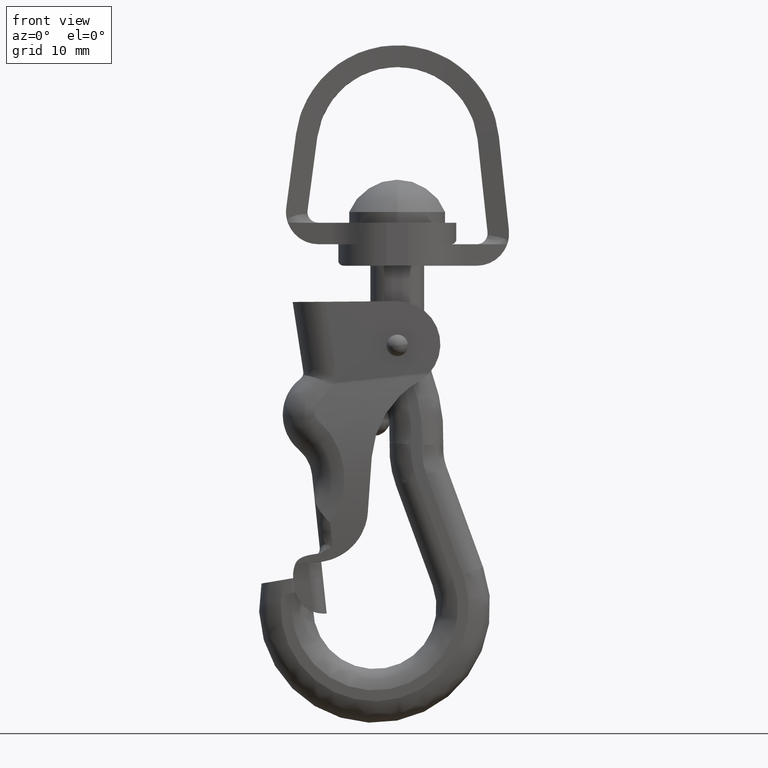
[diagram: clean part render]
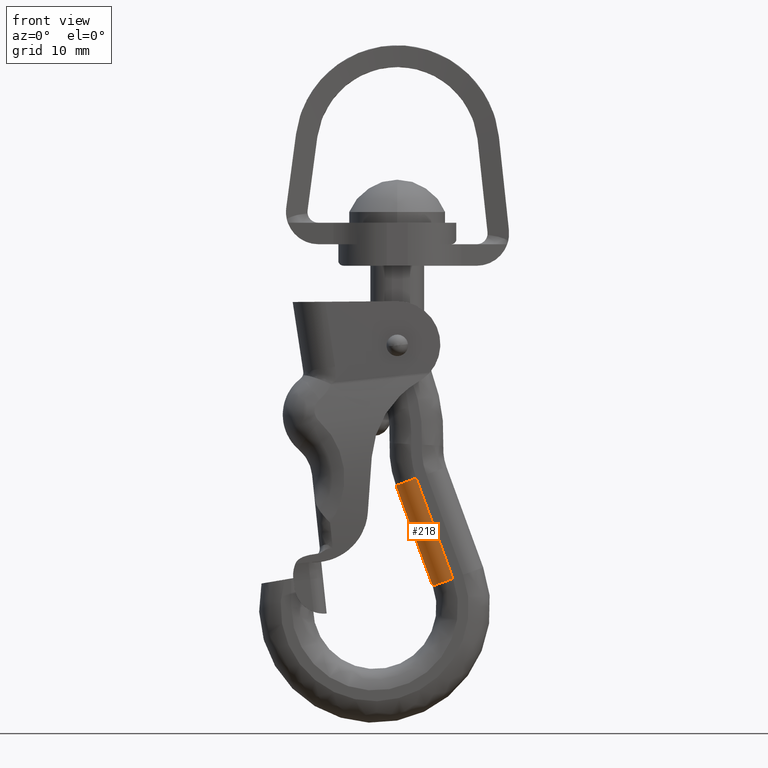
[diagram: same view with one face highlighted and labeled with its STEP entity id]
A machine part, front view. The second image highlights one B-rep face of the part: STEP entity #218.
In plain terms, the highlighted cylindrical surface (edge-blend (fillet) strip) has radius 2 mm, axis along (-0.3435, 0, 0.9391).
Its self-contained STEP definition (entity closure, byte-faithful):
#218=ADVANCED_FACE('',(#1043),#1042,.T.);
#1042=CYLINDRICAL_SURFACE('',#3051,2.00000000000E+00);
#1043=FACE_OUTER_BOUND('',#3052,.T.);
#3048=CARTESIAN_POINT('',(-6.11432666015E+00,-4.00000000000E-01,-2.23669020929E+00));
#3049=DIRECTION('',(-3.43546504209E-01,-0.00000000000E+00,9.39135666156E-01));
#3050=DIRECTION('',(9.39135666156E-01,-0.00000000000E+00,3.43546504209E-01));
#3051=AXIS2_PLACEMENT_3D('',#3048,#3049,#3050);
#3052=EDGE_LOOP('',(#5906,#5907,#5908,#5909));
#5906=ORIENTED_EDGE('',*,*,#6845,.T.);
#5907=ORIENTED_EDGE('',*,*,#6846,.F.);
#5908=ORIENTED_EDGE('',*,*,#6839,.F.);
#5909=ORIENTED_EDGE('',*,*,#6847,.F.);
#6839=EDGE_CURVE('',#8594,#8595,#8596,.T.);
#6845=EDGE_CURVE('',#8634,#8635,#8636,.T.);
#6846=EDGE_CURVE('',#8595,#8635,#8642,.T.);
#6847=EDGE_CURVE('',#8634,#8594,#8648,.T.);
#8594=VERTEX_POINT('',#12002);
#8595=VERTEX_POINT('',#12003);
#8596=CIRCLE('',#12007,2.00000000000E+00);
#8634=VERTEX_POINT('',#12029);
#8635=VERTEX_POINT('',#12030);
#8636=CIRCLE('',#12034,2.00000000000E+00);
#8642=LINE('',#12035,#12036);
#8648=LINE('',#12038,#12039);
#12002=CARTESIAN_POINT('',(-1.21033043158E-01,-4.00000000000E-01,-2.44418813552E+01));
#12003=CARTESIAN_POINT('',(1.75723828915E+00,-2.40000000000E+00,-2.37547883468E+01));
#12004=CARTESIAN_POINT('',(1.75723828915E+00,-4.00000000000E-01,-2.37547883468E+01));
#12005=DIRECTION('',(-3.43546504209E-01,-3.35226479592E-16,9.39135666156E-01));
#12006=DIRECTION('',(-9.39135666156E-01,-0.00000000000E+00,-3.43546504209E-01));
#12007=AXIS2_PLACEMENT_3D('',#12004,#12005,#12006);
#12029=CARTESIAN_POINT('',(3.29298432617E+00,-4.00000000000E-01,-3.37746076008E+01));
#12030=CARTESIAN_POINT('',(5.17125565848E+00,-2.40000000000E+00,-3.30875145924E+01));
#12031=CARTESIAN_POINT('',(5.17125565848E+00,-4.00000000000E-01,-3.30875145924E+01));
#12032=DIRECTION('',(-3.43546504209E-01,0.00000000000E+00,9.39135666156E-01));
#12033=DIRECTION('',(-9.39135666156E-01,-0.00000000000E+00,-3.43546504209E-01));
#12034=AXIS2_PLACEMENT_3D('',#12031,#12032,#12033);
#12035=CARTESIAN_POINT('',(1.75723828915E+00,-2.40000000000E+00,-2.37547883468E+01));
#12036=VECTOR('',#12037,9.93756981226E+00);
#12037=DIRECTION('',(3.43546504209E-01,0.00000000000E+00,-9.39135666156E-01));
#12038=CARTESIAN_POINT('',(3.29298432617E+00,-4.00000000000E-01,-3.37746076008E+01));
#12039=VECTOR('',#12040,9.93756981226E+00);
#12040=DIRECTION('',(-3.43546504209E-01,0.00000000000E+00,9.39135666156E-01));